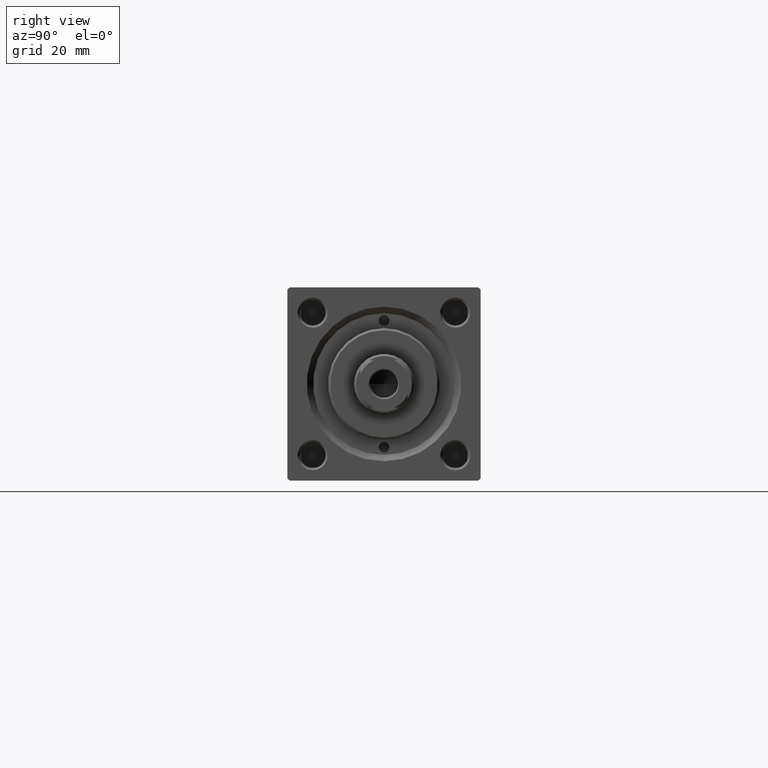
[diagram: clean part render]
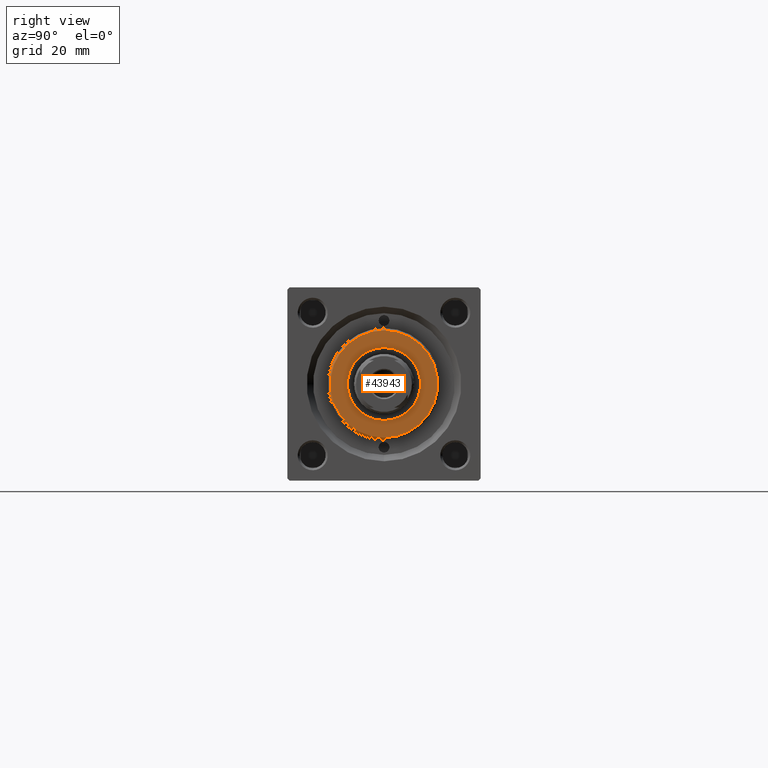
[diagram: same view with one face highlighted and labeled with its STEP entity id]
A machine part, right view. The second image highlights one B-rep face of the part: STEP entity #43943.
In plain terms, the highlighted planar face has unit normal (1, 0, 0).
Its self-contained STEP definition (entity closure, byte-faithful):
#1619 = DIRECTION ( 'NONE',  ( 0.000000000000000000, 0.000000000000000000, 1.000000000000000000 ) ) ;
#2400 = DIRECTION ( 'NONE',  ( 1.000000000000000000, 0.000000000000000000, 0.000000000000000000 ) ) ;
#2646 = EDGE_LOOP ( 'NONE', ( #4542, #30777 ) ) ;
#3142 = CARTESIAN_POINT ( 'NONE',  ( 0.000000000000000000, 0.000000000000000000, 36.69999999999999574 ) ) ;
#4542 = ORIENTED_EDGE ( 'NONE', *, *, #33084, .T. ) ;
#5443 = PLANE ( 'NONE',  #32203 ) ;
#8170 = CIRCLE ( 'NONE', #9774, 8.500000000000000000 ) ;
#8837 = VERTEX_POINT ( 'NONE', #19389 ) ;
#9490 = DIRECTION ( 'NONE',  ( 1.000000000000000000, 0.000000000000000000, -0.000000000000000000 ) ) ;
#9774 = AXIS2_PLACEMENT_3D ( 'NONE', #3142, #25541, #10764 ) ;
#10764 = DIRECTION ( 'NONE',  ( 1.000000000000000000, 0.000000000000000000, 0.000000000000000000 ) ) ;
#10859 = ORIENTED_EDGE ( 'NONE', *, *, #18297, .F. ) ;
#12715 = DIRECTION ( 'NONE',  ( 0.000000000000000000, 0.000000000000000000, 1.000000000000000000 ) ) ;
#14033 = AXIS2_PLACEMENT_3D ( 'NONE', #28052, #27804, #35684 ) ;
#14058 = AXIS2_PLACEMENT_3D ( 'NONE', #18427, #41346, #2400 ) ;
#15889 = CARTESIAN_POINT ( 'NONE',  ( -12.50000000000001066, 0.000000000000000000, 36.69999999999999574 ) ) ;
#17129 = CARTESIAN_POINT ( 'NONE',  ( 0.000000000000000000, 0.000000000000000000, 36.69999999999999574 ) ) ;
#17400 = CIRCLE ( 'NONE', #24757, 8.500000000000000000 ) ;
#18297 = EDGE_CURVE ( 'NONE', #49409, #8837, #8170, .T. ) ;
#18427 = CARTESIAN_POINT ( 'NONE',  ( 0.000000000000000000, 0.000000000000000000, 36.69999999999999574 ) ) ;
#19389 = CARTESIAN_POINT ( 'NONE',  ( 8.500000000000000000, 0.000000000000000000, 36.69999999999999574 ) ) ;
#19982 = EDGE_LOOP ( 'NONE', ( #31660, #10859 ) ) ;
#23536 = FACE_OUTER_BOUND ( 'NONE', #2646, .T. ) ;
#24757 = AXIS2_PLACEMENT_3D ( 'NONE', #47587, #12715, #43766 ) ;
#25541 = DIRECTION ( 'NONE',  ( 0.000000000000000000, 0.000000000000000000, 1.000000000000000000 ) ) ;
#27804 = DIRECTION ( 'NONE',  ( 0.000000000000000000, 0.000000000000000000, 1.000000000000000000 ) ) ;
#28052 = CARTESIAN_POINT ( 'NONE',  ( 0.000000000000000000, 0.000000000000000000, 36.69999999999999574 ) ) ;
#28244 = EDGE_CURVE ( 'NONE', #28263, #43917, #30349, .T. ) ;
#28263 = VERTEX_POINT ( 'NONE', #37537 ) ;
#30349 = CIRCLE ( 'NONE', #14058, 12.50000000000001066 ) ;
#30777 = ORIENTED_EDGE ( 'NONE', *, *, #28244, .T. ) ;
#31660 = ORIENTED_EDGE ( 'NONE', *, *, #31749, .F. ) ;
#31749 = EDGE_CURVE ( 'NONE', #8837, #49409, #17400, .T. ) ;
#32203 = AXIS2_PLACEMENT_3D ( 'NONE', #17129, #1619, #9490 ) ;
#33084 = EDGE_CURVE ( 'NONE', #43917, #28263, #36017, .T. ) ;
#35684 = DIRECTION ( 'NONE',  ( 1.000000000000000000, 0.000000000000000000, 0.000000000000000000 ) ) ;
#36017 = CIRCLE ( 'NONE', #14033, 12.50000000000001066 ) ;
#37537 = CARTESIAN_POINT ( 'NONE',  ( 12.50000000000001066, 1.561424668912876097E-15, 36.69999999999999574 ) ) ;
#41346 = DIRECTION ( 'NONE',  ( 0.000000000000000000, 0.000000000000000000, 1.000000000000000000 ) ) ;
#43766 = DIRECTION ( 'NONE',  ( 1.000000000000000000, 0.000000000000000000, 0.000000000000000000 ) ) ;
#43917 = VERTEX_POINT ( 'NONE', #15889 ) ;
#43943 = ADVANCED_FACE ( 'NONE', ( #47701, #23536 ), #5443, .T. ) ;
#44660 = CARTESIAN_POINT ( 'NONE',  ( -8.500000000000000000, 1.040949779275250140E-15, 36.69999999999999574 ) ) ;
#47587 = CARTESIAN_POINT ( 'NONE',  ( 0.000000000000000000, 0.000000000000000000, 36.69999999999999574 ) ) ;
#47701 = FACE_BOUND ( 'NONE', #19982, .T. ) ;
#49409 = VERTEX_POINT ( 'NONE', #44660 ) ;